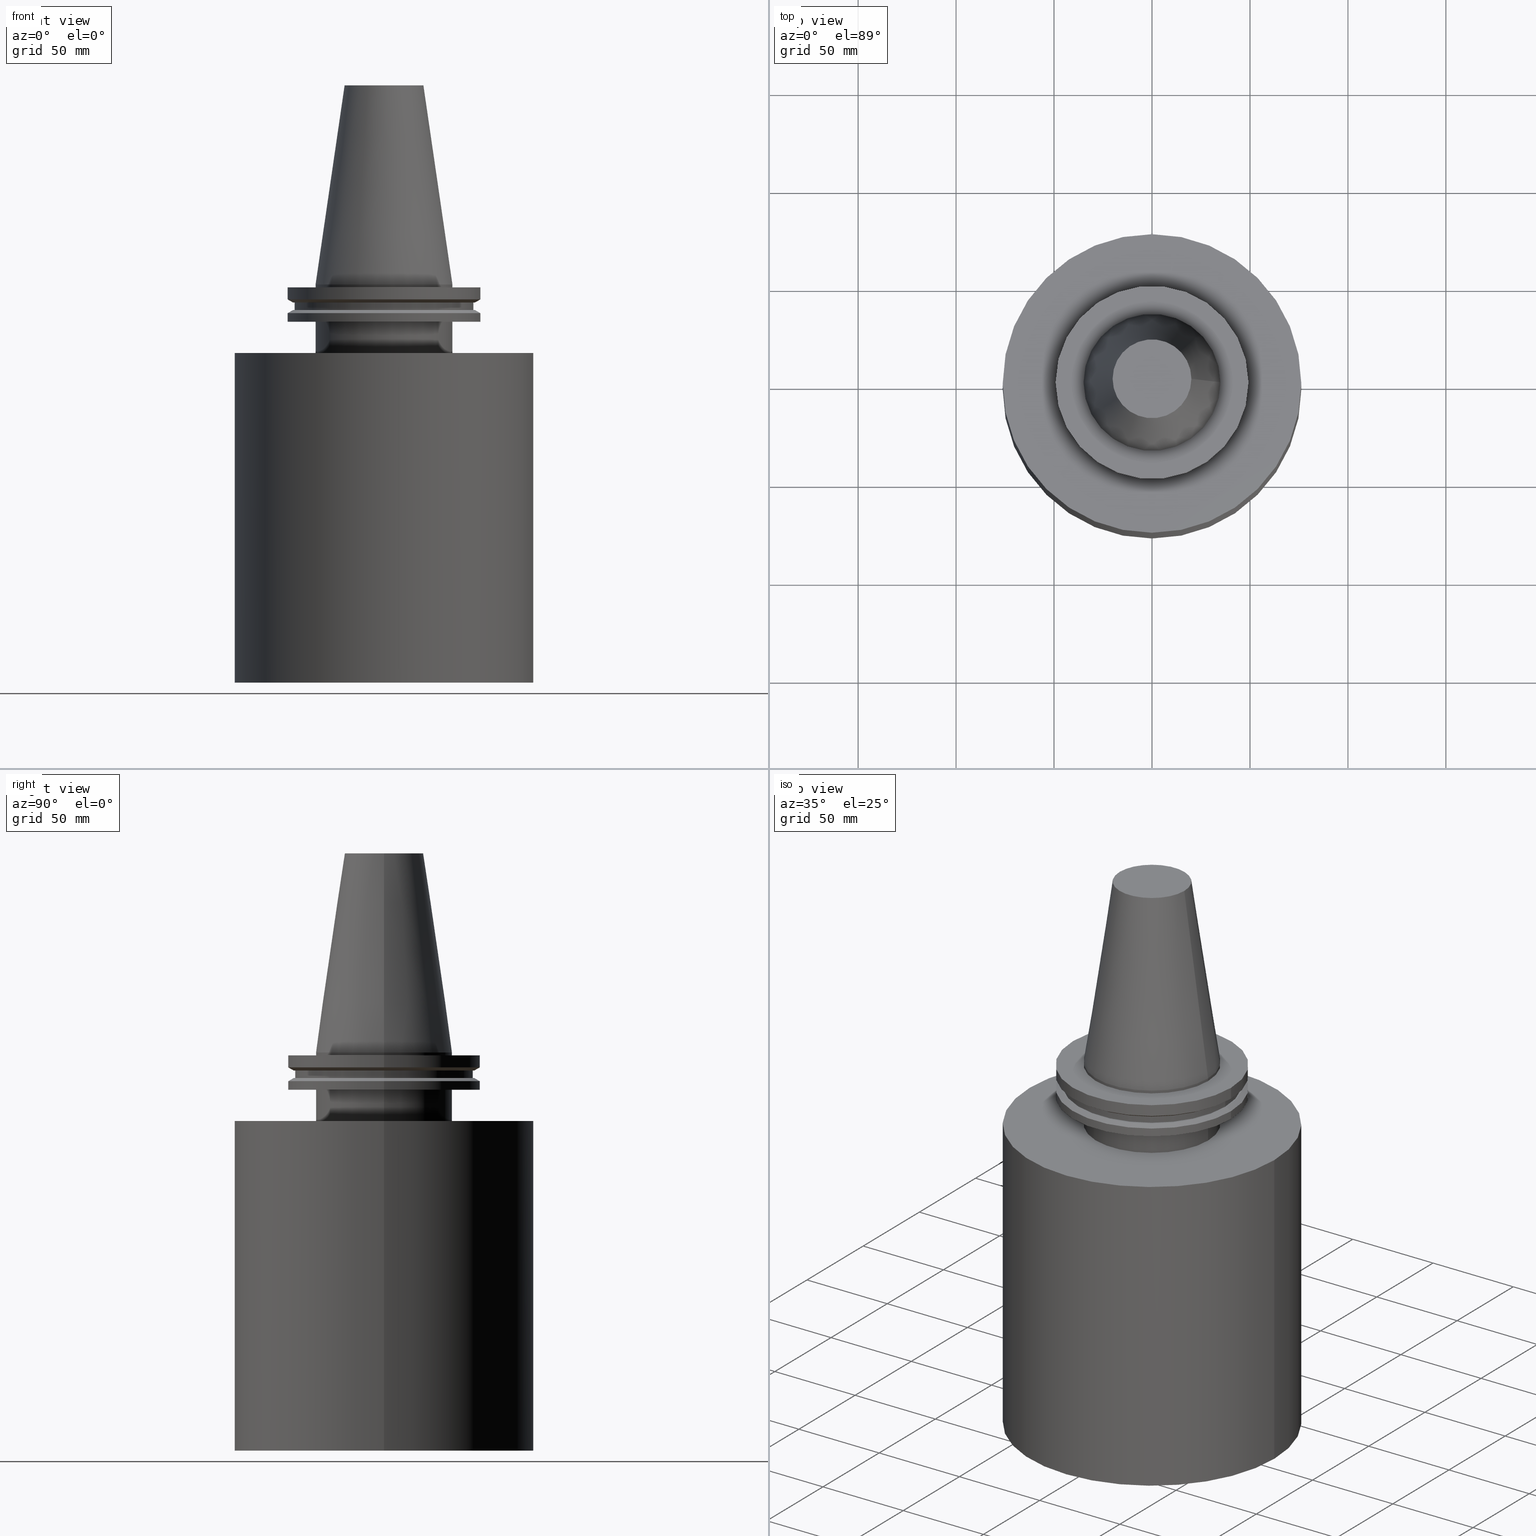
[diagram: canonical four-view strip — front | top / right | iso, engineering-drawing reading convention]
A machine part, canonical four-view strip (front | top / right | iso — engineering-drawing reading convention). The complete STEP part file that produces these views, byte-faithful:
ISO-10303-21;
HEADER;
FILE_DESCRIPTION (( 'STEP AP203' ),
    '1' );
FILE_NAME ('BVC50_BB6_000_8.stp',
    '2022-03-09T17:30:11',
    ( '' ),
    ( '' ),
    'SwSTEP 2.0',
    'SolidWorks 2021',
    '' );
FILE_SCHEMA (( 'CONFIG_CONTROL_DESIGN' ));
ENDSEC;

DATA;
#1 = VERTEX_POINT ( 'NONE', #205 ) ;
#2 = CIRCLE ( 'NONE', #90, 45.64500000000000313 ) ;
#3 = CARTESIAN_POINT ( 'NONE',  ( 76.20000000000000284, 0.000000000000000000, -35.00000000000000000 ) ) ;
#4 = AXIS2_PLACEMENT_3D ( 'NONE', #364, #6, #366 ) ;
#5 = PERSON ( 'UNSPECIFIED', 'UNSPECIFIED', 'UNSPECIFIED', ('UNSPECIFIED'), ('UNSPECIFIED'), ('UNSPECIFIED') ) ;
#6 = DIRECTION ( 'NONE',  ( -0.000000000000000000, -0.000000000000000000, 1.000000000000000000 ) ) ;
#7 = ORIENTED_EDGE ( 'NONE', *, *, #33, .T. ) ;
#8 = EDGE_LOOP ( 'NONE', ( #341 ) ) ;
#9 = DIRECTION ( 'NONE',  ( -0.000000000000000000, -0.000000000000000000, 1.000000000000000000 ) ) ;
#10 = CONICAL_SURFACE ( 'NONE', #225, 49.21499999999998920, 1.047197551196554333 ) ;
#11 = EDGE_LOOP ( 'NONE', ( #191 ) ) ;
#12 = CALENDAR_DATE ( 2022, 9, 3 ) ;
#13 = CARTESIAN_POINT ( 'NONE',  ( 46.43919780457007818, 0.000000000000000000, -13.05499999999999794 ) ) ;
#14 = EDGE_LOOP ( 'NONE', ( #395 ) ) ;
#15 = DATE_AND_TIME ( #12, #384 ) ;
#16 = ORIENTED_EDGE ( 'NONE', *, *, #197, .T. ) ;
#17 = CC_DESIGN_PERSON_AND_ORGANIZATION_ASSIGNMENT ( #112, #104, ( #158 ) ) ;
#18 = PERSON_AND_ORGANIZATION ( #5, #185 ) ;
#19 = DIRECTION ( 'NONE',  ( 1.000000000000000000, 0.000000000000000000, 0.000000000000000000 ) ) ;
#20 = APPROVAL_STATUS ( 'not_yet_approved' ) ;
#21 = CYLINDRICAL_SURFACE ( 'NONE', #266, 49.21499999999999631 ) ;
#22 = CC_DESIGN_PERSON_AND_ORGANIZATION_ASSIGNMENT ( #190, #192, ( #158 ) ) ;
#23 = CARTESIAN_POINT ( 'NONE',  ( 0.000000000000000000, 20.10819343178871321, 101.5999999999999943 ) ) ;
#24 = CC_DESIGN_APPROVAL ( #183, ( #386 ) ) ;
#25 = DIRECTION ( 'NONE',  ( 1.000000000000000000, 0.000000000000000000, 0.000000000000000000 ) ) ;
#26 = DIRECTION ( 'NONE',  ( -0.000000000000000000, -0.000000000000000000, 1.000000000000000000 ) ) ;
#27 = DIRECTION ( 'NONE',  ( -0.000000000000000000, -0.000000000000000000, 1.000000000000000000 ) ) ;
#28 = AXIS2_PLACEMENT_3D ( 'NONE', #256, #107, #259 ) ;
#29 = VERTEX_POINT ( 'NONE', #118 ) ;
#30 = CARTESIAN_POINT ( 'NONE',  ( 0.000000000000000000, 49.21499999999998920, -19.04999999999999716 ) ) ;
#31 = ORIENTED_EDGE ( 'NONE', *, *, #197, .F. ) ;
#32 = DIRECTION ( 'NONE',  ( 0.000000000000000000, -0.000000000000000000, 1.000000000000000000 ) ) ;
#33 = EDGE_CURVE ( 'NONE', #232, #232, #382, .T. ) ;
#34 = CONICAL_SURFACE ( 'NONE', #339, 46.43919780457007818, 1.047197551196575205 ) ;
#35 = DIRECTION ( 'NONE',  ( 1.000000000000000000, 0.000000000000000000, 0.000000000000000000 ) ) ;
#36 = FACE_OUTER_BOUND ( 'NONE', #8, .T. ) ;
#37 = VERTEX_POINT ( 'NONE', #160 ) ;
#38 = CARTESIAN_POINT ( 'NONE',  ( 0.000000000000000000, 0.000000000000000000, -9.204999999999991189 ) ) ;
#39 = CIRCLE ( 'NONE', #237, 76.20000000000000284 ) ;
#40 = ORIENTED_EDGE ( 'NONE', *, *, #381, .F. ) ;
#41 = CC_DESIGN_APPROVAL ( #147, ( #158 ) ) ;
#42 = EDGE_LOOP ( 'NONE', ( #102 ) ) ;
#43 = CARTESIAN_POINT ( 'NONE',  ( 0.000000000000000000, 0.000000000000000000, 0.000000000000000000 ) ) ;
#44 = ORIENTED_EDGE ( 'NONE', *, *, #33, .F. ) ;
#45 = CARTESIAN_POINT ( 'NONE',  ( 0.000000000000000000, 0.000000000000000000, 101.5999999999999801 ) ) ;
#46 = APPROVAL_PERSON_ORGANIZATION ( #18, #183, #106 ) ;
#47 = APPROVAL_DATE_TIME ( #137, #357 ) ;
#48 = PLANE ( 'NONE',  #188 ) ;
#49 = DATE_TIME_ROLE ( 'classification_date' ) ;
#50 = DIRECTION ( 'NONE',  ( -1.000000000000000000, 0.000000000000000000, -0.000000000000000000 ) ) ;
#51 = APPLICATION_CONTEXT ( 'configuration controlled 3d designs of mechanical parts and assemblies' ) ;
#52 = PRODUCT_RELATED_PRODUCT_CATEGORY ( 'detail', '', ( #53 ) ) ;
#53 = PRODUCT ( 'BVC50_BB6_000_8', 'BVC50_BB6_000_8', '', ( #252 ) ) ;
#54 = CARTESIAN_POINT ( 'NONE',  ( 0.000000000000000000, 0.000000000000000000, -14.65761014474876944 ) ) ;
#55 = CIRCLE ( 'NONE', #80, 49.21499999999998920 ) ;
#56 = FACE_BOUND ( 'NONE', #161, .T. ) ;
#57 = CARTESIAN_POINT ( 'NONE',  ( 34.92499999999999716, 0.000000000000000000, -35.00000000000000000 ) ) ;
#58 = CC_DESIGN_PERSON_AND_ORGANIZATION_ASSIGNMENT ( #219, #287, ( #386 ) ) ;
#59 = DIRECTION ( 'NONE',  ( 1.000000000000000000, 0.000000000000000000, 0.000000000000000000 ) ) ;
#60 = ADVANCED_FACE ( 'NONE', ( #187, #134 ), #347, .T. ) ;
#61 = CIRCLE ( 'NONE', #352, 34.92499999999999005 ) ;
#62 = CARTESIAN_POINT ( 'NONE',  ( 0.000000000000000000, 0.000000000000000000, -203.1999999999999886 ) ) ;
#63 = EDGE_CURVE ( 'NONE', #152, #152, #39, .T. ) ;
#64 = DIRECTION ( 'NONE',  ( -0.000000000000000000, -0.000000000000000000, 1.000000000000000000 ) ) ;
#65 = EDGE_LOOP ( 'NONE', ( #242 ) ) ;
#66 = VERTEX_POINT ( 'NONE', #276 ) ;
#67 = EDGE_LOOP ( 'NONE', ( #76 ) ) ;
#68 = AXIS2_PLACEMENT_3D ( 'NONE', #62, #270, #178 ) ;
#69 = CARTESIAN_POINT ( 'NONE',  ( 0.000000000000000000, 0.000000000000000000, 0.000000000000000000 ) ) ;
#70 = DIRECTION ( 'NONE',  ( 0.000000000000000000, 0.000000000000000000, -1.000000000000000000 ) ) ;
#71 = ADVANCED_FACE ( 'NONE', ( #309, #36 ), #344, .T. ) ;
#72 = AXIS2_PLACEMENT_3D ( 'NONE', #136, #113, #202 ) ;
#73 = DIRECTION ( 'NONE',  ( -0.000000000000000000, -0.000000000000000000, 1.000000000000000000 ) ) ;
#74 = LOCAL_TIME ( 11, 30, 11.00000000000000000, #133 ) ;
#75 = CALENDAR_DATE ( 2022, 9, 3 ) ;
#76 = ORIENTED_EDGE ( 'NONE', *, *, #342, .T. ) ;
#77 = APPROVAL_DATE_TIME ( #353, #147 ) ;
#78 = EDGE_LOOP ( 'NONE', ( #288 ) ) ;
#79 = DIRECTION ( 'NONE',  ( 0.000000000000000000, 0.000000000000000000, -1.000000000000000000 ) ) ;
#80 = AXIS2_PLACEMENT_3D ( 'NONE', #201, #262, #359 ) ;
#81 = CARTESIAN_POINT ( 'NONE',  ( 0.000000000000000000, 0.000000000000000000, 101.5999999999999943 ) ) ;
#82 = DIRECTION ( 'NONE',  ( 0.000000000000000000, -0.000000000000000000, 1.000000000000000000 ) ) ;
#83 = EDGE_CURVE ( 'NONE', #66, #66, #122, .T. ) ;
#84 = FACE_BOUND ( 'NONE', #279, .T. ) ;
#85 = CC_DESIGN_DATE_AND_TIME_ASSIGNMENT ( #108, #346, ( #386 ) ) ;
#86 = CARTESIAN_POINT ( 'NONE',  ( 0.000000000000000000, 0.000000000000000000, 101.5999999999999943 ) ) ;
#87 = DIRECTION ( 'NONE',  ( 1.000000000000000000, 0.000000000000000000, 0.000000000000000000 ) ) ;
#88 = DIRECTION ( 'NONE',  ( 0.000000000000000000, 0.000000000000000000, -1.000000000000000000 ) ) ;
#89 = ORIENTED_EDGE ( 'NONE', *, *, #141, .F. ) ;
#90 = AXIS2_PLACEMENT_3D ( 'NONE', #380, #228, #169 ) ;
#91 = CYLINDRICAL_SURFACE ( 'NONE', #301, 34.92499999999999005 ) ;
#92 = DIRECTION ( 'NONE',  ( 1.000000000000000000, 0.000000000000000000, 0.000000000000000000 ) ) ;
#93 = VERTEX_POINT ( 'NONE', #214 ) ;
#94 = ADVANCED_FACE ( 'NONE', ( #280, #248 ), #371, .T. ) ;
#95 = AXIS2_PLACEMENT_3D ( 'NONE', #299, #88, #236 ) ;
#96 = DIRECTION ( 'NONE',  ( -0.000000000000000000, -0.000000000000000000, 1.000000000000000000 ) ) ;
#97 = ORIENTED_EDGE ( 'NONE', *, *, #120, .F. ) ;
#98 = EDGE_CURVE ( 'NONE', #329, #329, #258, .T. ) ;
#99 = EDGE_LOOP ( 'NONE', ( #249 ) ) ;
#100 = CC_DESIGN_DATE_AND_TIME_ASSIGNMENT ( #15, #49, ( #166 ) ) ;
#101 = DATE_AND_TIME ( #75, #230 ) ;
#102 = ORIENTED_EDGE ( 'NONE', *, *, #129, .F. ) ;
#103 = AXIS2_PLACEMENT_3D ( 'NONE', #335, #64, #87 ) ;
#104 = PERSON_AND_ORGANIZATION_ROLE ( 'creator' ) ;
#105 = EDGE_LOOP ( 'NONE', ( #130 ) ) ;
#106 = APPROVAL_ROLE ( '' ) ;
#107 = DIRECTION ( 'NONE',  ( -0.000000000000000000, -0.000000000000000000, 1.000000000000000000 ) ) ;
#108 = DATE_AND_TIME ( #139, #313 ) ;
#109 = FACE_OUTER_BOUND ( 'NONE', #11, .T. ) ;
#110 = AXIS2_PLACEMENT_3D ( 'NONE', #388, #351, #50 ) ;
#111 = CIRCLE ( 'NONE', #4, 46.43919780457007818 ) ;
#112 = PERSON_AND_ORGANIZATION ( #5, #185 ) ;
#113 = DIRECTION ( 'NONE',  ( -0.000000000000000000, -0.000000000000000000, 1.000000000000000000 ) ) ;
#114 = DIRECTION ( 'NONE',  ( 1.000000000000000000, 0.000000000000000000, 0.000000000000000000 ) ) ;
#115 = DIRECTION ( 'NONE',  ( -0.000000000000000000, -0.000000000000000000, 1.000000000000000000 ) ) ;
#116 = AXIS2_PLACEMENT_3D ( 'NONE', #391, #148, #213 ) ;
#117 = DIRECTION ( 'NONE',  ( 1.000000000000000000, 0.000000000000000000, 0.000000000000000000 ) ) ;
#118 = CARTESIAN_POINT ( 'NONE',  ( 20.10819343178871321, 0.000000000000000000, 101.5999999999999801 ) ) ;
#119 = FACE_OUTER_BOUND ( 'NONE', #310, .T. ) ;
#120 = EDGE_CURVE ( 'NONE', #174, #174, #55, .T. ) ;
#121 = ORIENTED_EDGE ( 'NONE', *, *, #342, .F. ) ;
#122 = CIRCLE ( 'NONE', #320, 46.43919780457007818 ) ;
#123 = FACE_OUTER_BOUND ( 'NONE', #220, .T. ) ;
#124 = DIRECTION ( 'NONE',  ( 1.000000000000000000, 0.000000000000000000, 0.000000000000000000 ) ) ;
#125 = EDGE_CURVE ( 'NONE', #360, #360, #61, .T. ) ;
#126 = EDGE_LOOP ( 'NONE', ( #343 ) ) ;
#127 = ADVANCED_FACE ( 'NONE', ( #84, #229 ), #10, .T. ) ;
#128 = EDGE_LOOP ( 'NONE', ( #277 ) ) ;
#129 = EDGE_CURVE ( 'NONE', #29, #29, #312, .T. ) ;
#130 = ORIENTED_EDGE ( 'NONE', *, *, #83, .F. ) ;
#131 = MANIFOLD_SOLID_BREP ( 'BB', #331 ) ;
#132 = ORIENTED_EDGE ( 'NONE', *, *, #193, .F. ) ;
#133 = COORDINATED_UNIVERSAL_TIME_OFFSET ( 6, 0, .BEHIND. ) ;
#134 = FACE_OUTER_BOUND ( 'NONE', #286, .T. ) ;
#135 = COORDINATED_UNIVERSAL_TIME_OFFSET ( 6, 0, .BEHIND. ) ;
#136 = CARTESIAN_POINT ( 'NONE',  ( 0.000000000000000000, 0.000000000000000000, -19.04999999999999716 ) ) ;
#137 = DATE_AND_TIME ( #375, #74 ) ;
#138 = DIRECTION ( 'NONE',  ( -0.000000000000000000, -0.000000000000000000, 1.000000000000000000 ) ) ;
#139 = CALENDAR_DATE ( 2022, 9, 3 ) ;
#140 = FACE_OUTER_BOUND ( 'NONE', #368, .T. ) ;
#141 = EDGE_CURVE ( 'NONE', #234, #234, #2, .T. ) ;
#142 = DIRECTION ( 'NONE',  ( 1.000000000000000000, 0.000000000000000000, 0.000000000000000000 ) ) ;
#143 = DIRECTION ( 'NONE',  ( -0.000000000000000000, -0.000000000000000000, 1.000000000000000000 ) ) ;
#144 = PLANE ( 'NONE',  #275 ) ;
#145 = ADVANCED_FACE ( 'NONE', ( #385, #323 ), #263, .F. ) ;
#146 = PLANE ( 'NONE',  #116 ) ;
#147 = APPROVAL ( #224, 'UNSPECIFIED' ) ;
#148 = DIRECTION ( 'NONE',  ( 0.000000000000000000, -0.000000000000000000, 1.000000000000000000 ) ) ;
#149 = CARTESIAN_POINT ( 'NONE',  ( 0.000000000000000000, 0.000000000000000000, -7.602389855251287187 ) ) ;
#150 = AXIS2_PLACEMENT_3D ( 'NONE', #293, #82, #326 ) ;
#151 = APPROVAL_PERSON_ORGANIZATION ( #292, #147, #162 ) ;
#152 = VERTEX_POINT ( 'NONE', #3 ) ;
#153 = DESIGN_CONTEXT ( 'detailed design', #51, 'design' ) ;
#154 =( NAMED_UNIT ( * ) PLANE_ANGLE_UNIT ( ) SI_UNIT ( $, .RADIAN. ) );
#155 = CARTESIAN_POINT ( 'NONE',  ( 45.64500000000000313, 0.000000000000000000, -13.05499999999999794 ) ) ;
#156 = ORIENTED_EDGE ( 'NONE', *, *, #63, .F. ) ;
#157 = DIRECTION ( 'NONE',  ( 1.000000000000000000, 0.000000000000000000, 0.000000000000000000 ) ) ;
#158 = PRODUCT_DEFINITION_FORMATION_WITH_SPECIFIED_SOURCE ( 'ANY', '', #53, .NOT_KNOWN. ) ;
#159 = DIRECTION ( 'NONE',  ( -0.000000000000000000, -0.000000000000000000, 1.000000000000000000 ) ) ;
#160 = CARTESIAN_POINT ( 'NONE',  ( 76.20000000000000284, 0.000000000000000000, -203.1999999999999886 ) ) ;
#161 = EDGE_LOOP ( 'NONE', ( #31 ) ) ;
#162 = APPROVAL_ROLE ( '' ) ;
#163 = DIRECTION ( 'NONE',  ( 1.000000000000000000, 0.000000000000000000, 0.000000000000000000 ) ) ;
#164 = SECURITY_CLASSIFICATION_LEVEL ( 'unclassified' ) ;
#165 = DIRECTION ( 'NONE',  ( 0.000000000000000000, 0.000000000000000000, -1.000000000000000000 ) ) ;
#166 = SECURITY_CLASSIFICATION ( '', '', #164 ) ;
#167 = APPLICATION_PROTOCOL_DEFINITION ( 'international standard', 'config_control_design', 1994, #51 ) ;
#168 = PLANE ( 'NONE',  #150 ) ;
#169 = DIRECTION ( 'NONE',  ( 1.000000000000000000, 0.000000000000000000, 0.000000000000000000 ) ) ;
#170 = APPLICATION_CONTEXT ( 'configuration controlled 3d designs of mechanical parts and assemblies' ) ;
#171 = CC_DESIGN_PERSON_AND_ORGANIZATION_ASSIGNMENT ( #198, #324, ( #166 ) ) ;
#172 = FACE_OUTER_BOUND ( 'NONE', #303, .T. ) ;
#173 = CARTESIAN_POINT ( 'NONE',  ( 0.000000000000000000, 0.000000000000000000, -9.204999999999991189 ) ) ;
#174 = VERTEX_POINT ( 'NONE', #206 ) ;
#175 = FACE_OUTER_BOUND ( 'NONE', #105, .T. ) ;
#176 = ADVANCED_FACE ( 'NONE', ( #56, #109 ), #354, .F. ) ;
#177 = CIRCLE ( 'NONE', #68, 76.20000000000000284 ) ;
#178 = DIRECTION ( 'NONE',  ( 1.000000000000000000, 0.000000000000000000, 0.000000000000000000 ) ) ;
#179 = ADVANCED_FACE ( 'NONE', ( #295 ), #48, .F. ) ;
#180 = FACE_OUTER_BOUND ( 'NONE', #393, .T. ) ;
#181 = ORIENTED_EDGE ( 'NONE', *, *, #98, .F. ) ;
#182 = FACE_OUTER_BOUND ( 'NONE', #126, .T. ) ;
#183 = APPROVAL ( #379, 'UNSPECIFIED' ) ;
#184 = EDGE_LOOP ( 'NONE', ( #373 ) ) ;
#185 = ORGANIZATION ( 'UNSPECIFIED', 'UNSPECIFIED', '' ) ;
#186 = DIRECTION ( 'NONE',  ( -1.000000000000000000, 0.000000000000000000, 0.000000000000000000 ) ) ;
#187 = FACE_OUTER_BOUND ( 'NONE', #189, .T. ) ;
#188 = AXIS2_PLACEMENT_3D ( 'NONE', #23, #79, #227 ) ;
#189 = EDGE_LOOP ( 'NONE', ( #89 ) ) ;
#190 = PERSON_AND_ORGANIZATION ( #5, #185 ) ;
#191 = ORIENTED_EDGE ( 'NONE', *, *, #294, .T. ) ;
#192 = PERSON_AND_ORGANIZATION_ROLE ( 'design_supplier' ) ;
#193 = EDGE_CURVE ( 'NONE', #332, #332, #238, .T. ) ;
#194 = DIRECTION ( 'NONE',  ( 1.000000000000000000, 0.000000000000000000, 0.000000000000000000 ) ) ;
#195 = AXIS2_PLACEMENT_3D ( 'NONE', #311, #159, #25 ) ;
#196 = CARTESIAN_POINT ( 'NONE',  ( 0.000000000000000000, 0.000000000000000000, 0.000000000000000000 ) ) ;
#197 = EDGE_CURVE ( 'NONE', #246, #246, #296, .T. ) ;
#198 = PERSON_AND_ORGANIZATION ( #5, #185 ) ;
#199 = FACE_OUTER_BOUND ( 'NONE', #336, .T. ) ;
#200 = ADVANCED_FACE ( 'NONE', ( #140, #328 ), #34, .T. ) ;
#201 = CARTESIAN_POINT ( 'NONE',  ( 0.000000000000000000, 0.000000000000000000, -14.65761014474876944 ) ) ;
#202 = DIRECTION ( 'NONE',  ( 1.000000000000000000, 0.000000000000000000, 0.000000000000000000 ) ) ;
#203 = CC_DESIGN_APPROVAL ( #357, ( #166 ) ) ;
#204 = CARTESIAN_POINT ( 'NONE',  ( 49.21499999999999631, 0.000000000000000000, -1.499999999999987566 ) ) ;
#205 = CARTESIAN_POINT ( 'NONE',  ( 49.21500000000000341, 0.000000000000000000, -7.602389855251287187 ) ) ;
#206 = CARTESIAN_POINT ( 'NONE',  ( 49.21499999999998920, 0.000000000000000000, -14.65761014474876944 ) ) ;
#207 = CARTESIAN_POINT ( 'NONE',  ( 45.64500000000000313, 0.000000000000000000, -9.204999999999991189 ) ) ;
#208 = EDGE_LOOP ( 'NONE', ( #272 ) ) ;
#209 = AXIS2_PLACEMENT_3D ( 'NONE', #215, #218, #163 ) ;
#210 = LOCAL_TIME ( 11, 30, 11.00000000000000000, #383 ) ;
#211 = ADVANCED_FACE ( 'NONE', ( #298 ), #168, .F. ) ;
#212 = PLANE ( 'NONE',  #95 ) ;
#213 = DIRECTION ( 'NONE',  ( 1.000000000000000000, 0.000000000000000000, 0.000000000000000000 ) ) ;
#214 = CARTESIAN_POINT ( 'NONE',  ( 34.92499999999999716, 0.000000000000000000, -19.04999999999999716 ) ) ;
#215 = CARTESIAN_POINT ( 'NONE',  ( 0.000000000000000000, 0.000000000000000000, -1.499999999999987566 ) ) ;
#216 = EDGE_LOOP ( 'NONE', ( #181 ) ) ;
#217 = ADVANCED_FACE ( 'NONE', ( #199, #172 ), #319, .T. ) ;
#218 = DIRECTION ( 'NONE',  ( -0.000000000000000000, -0.000000000000000000, 1.000000000000000000 ) ) ;
#219 = PERSON_AND_ORGANIZATION ( #5, #185 ) ;
#220 = EDGE_LOOP ( 'NONE', ( #244 ) ) ;
#221 = DIRECTION ( 'NONE',  ( 0.000000000000000000, 0.000000000000000000, 1.000000000000000000 ) ) ;
#222 = DIRECTION ( 'NONE',  ( 1.000000000000000000, 0.000000000000000000, 0.000000000000000000 ) ) ;
#223 = CARTESIAN_POINT ( 'NONE',  ( 0.000000000000000000, 49.21499999999999631, -1.499999999999992895 ) ) ;
#224 = APPROVAL_STATUS ( 'not_yet_approved' ) ;
#225 = AXIS2_PLACEMENT_3D ( 'NONE', #54, #165, #226 ) ;
#226 = DIRECTION ( 'NONE',  ( -1.000000000000000000, 0.000000000000000000, 0.000000000000000000 ) ) ;
#227 = DIRECTION ( 'NONE',  ( -1.000000000000000000, 0.000000000000000000, -0.000000000000000000 ) ) ;
#228 = DIRECTION ( 'NONE',  ( -0.000000000000000000, -0.000000000000000000, 1.000000000000000000 ) ) ;
#229 = FACE_OUTER_BOUND ( 'NONE', #307, .T. ) ;
#230 = LOCAL_TIME ( 11, 30, 11.00000000000000000, #135 ) ;
#231 = ADVANCED_FACE ( 'NONE', ( #291, #378 ), #21, .T. ) ;
#232 = VERTEX_POINT ( 'NONE', #204 ) ;
#233 = UNCERTAINTY_MEASURE_WITH_UNIT (LENGTH_MEASURE( 1.000000000000000082E-05 ), #365, 'distance_accuracy_value', 'NONE');
#234 = VERTEX_POINT ( 'NONE', #207 ) ;
#235 = ORIENTED_EDGE ( 'NONE', *, *, #294, .F. ) ;
#236 = DIRECTION ( 'NONE',  ( -1.000000000000000000, 0.000000000000000000, -0.000000000000000000 ) ) ;
#237 = AXIS2_PLACEMENT_3D ( 'NONE', #340, #73, #222 ) ;
#238 = CIRCLE ( 'NONE', #72, 49.21499999999998920 ) ;
#239 = CC_DESIGN_PERSON_AND_ORGANIZATION_ASSIGNMENT ( #348, #377, ( #53 ) ) ;
#240 = DIRECTION ( 'NONE',  ( -0.000000000000000000, -0.000000000000000000, 1.000000000000000000 ) ) ;
#241 = DIRECTION ( 'NONE',  ( -0.000000000000000000, -0.000000000000000000, 1.000000000000000000 ) ) ;
#242 = ORIENTED_EDGE ( 'NONE', *, *, #141, .T. ) ;
#243 = APPLICATION_PROTOCOL_DEFINITION ( 'international standard', 'config_control_design', 1994, #170 ) ;
#244 = ORIENTED_EDGE ( 'NONE', *, *, #63, .T. ) ;
#245 = AXIS2_PLACEMENT_3D ( 'NONE', #297, #26, #142 ) ;
#246 = VERTEX_POINT ( 'NONE', #155 ) ;
#247 = EDGE_CURVE ( 'NONE', #37, #37, #177, .T. ) ;
#248 = FACE_OUTER_BOUND ( 'NONE', #184, .T. ) ;
#249 = ORIENTED_EDGE ( 'NONE', *, *, #247, .F. ) ;
#250 = ADVANCED_FACE ( 'NONE', ( #119, #302 ), #144, .F. ) ;
#251 = EDGE_LOOP ( 'NONE', ( #156 ) ) ;
#252 = MECHANICAL_CONTEXT ( 'NONE', #170, 'mechanical' ) ;
#253 = CARTESIAN_POINT ( 'NONE',  ( 0.000000000000000000, 0.000000000000000000, 101.5999999999999943 ) ) ;
#254 = COORDINATED_UNIVERSAL_TIME_OFFSET ( 6, 0, .BEHIND. ) ;
#255 = DIRECTION ( 'NONE',  ( -1.000000000000000000, 0.000000000000000000, -0.000000000000000000 ) ) ;
#256 = CARTESIAN_POINT ( 'NONE',  ( 0.000000000000000000, 0.000000000000000000, -35.00000000000000000 ) ) ;
#257 = APPROVAL_DATE_TIME ( #101, #183 ) ;
#258 = CIRCLE ( 'NONE', #28, 34.92499999999999716 ) ;
#259 = DIRECTION ( 'NONE',  ( 1.000000000000000000, 0.000000000000000000, 0.000000000000000000 ) ) ;
#260 = ADVANCED_BREP_SHAPE_REPRESENTATION ( 'BVC50_BB6_000_8', ( #131, #369 ), #345 ) ;
#261 = CARTESIAN_POINT ( 'NONE',  ( 34.92499999999999005, 0.000000000000000000, -1.499999999999987566 ) ) ;
#262 = DIRECTION ( 'NONE',  ( -0.000000000000000000, -0.000000000000000000, 1.000000000000000000 ) ) ;
#263 = PLANE ( 'NONE',  #281 ) ;
#264 = ADVANCED_FACE ( 'NONE', ( #175, #300 ), #146, .F. ) ;
#265 = DIRECTION ( 'NONE',  ( -0.000000000000000000, -0.000000000000000000, 1.000000000000000000 ) ) ;
#266 = AXIS2_PLACEMENT_3D ( 'NONE', #81, #27, #59 ) ;
#267 = ADVANCED_FACE ( 'NONE', ( #361, #182 ), #91, .T. ) ;
#268 = FACE_OUTER_BOUND ( 'NONE', #208, .T. ) ;
#269 = ORIENTED_EDGE ( 'NONE', *, *, #98, .T. ) ;
#270 = DIRECTION ( 'NONE',  ( -0.000000000000000000, -0.000000000000000000, 1.000000000000000000 ) ) ;
#271 = ADVANCED_FACE ( 'NONE', ( #394, #123 ), #212, .F. ) ;
#272 = ORIENTED_EDGE ( 'NONE', *, *, #193, .T. ) ;
#273 = CARTESIAN_POINT ( 'NONE',  ( 0.000000000000000000, 0.000000000000000000, -19.04999999999999716 ) ) ;
#274 = AXIS2_PLACEMENT_3D ( 'NONE', #387, #143, #114 ) ;
#275 = AXIS2_PLACEMENT_3D ( 'NONE', #30, #32, #124 ) ;
#276 = CARTESIAN_POINT ( 'NONE',  ( 46.43919780457007818, 0.000000000000000000, -9.204999999999991189 ) ) ;
#277 = ORIENTED_EDGE ( 'NONE', *, *, #129, .T. ) ;
#278 = VERTEX_POINT ( 'NONE', #261 ) ;
#279 = EDGE_LOOP ( 'NONE', ( #235 ) ) ;
#280 = FACE_OUTER_BOUND ( 'NONE', #251, .T. ) ;
#281 = AXIS2_PLACEMENT_3D ( 'NONE', #223, #325, #255 ) ;
#282 = CIRCLE ( 'NONE', #103, 34.92499999999999005 ) ;
#283 = EDGE_LOOP ( 'NONE', ( #367 ) ) ;
#284 = COORDINATED_UNIVERSAL_TIME_OFFSET ( 6, 0, .BEHIND. ) ;
#285 = VERTEX_POINT ( 'NONE', #13 ) ;
#286 = EDGE_LOOP ( 'NONE', ( #16 ) ) ;
#287 = PERSON_AND_ORGANIZATION_ROLE ( 'creator' ) ;
#288 = ORIENTED_EDGE ( 'NONE', *, *, #83, .T. ) ;
#289 = DIRECTION ( 'NONE',  ( 1.000000000000000000, 0.000000000000000000, 0.000000000000000000 ) ) ;
#290 = AXIS2_PLACEMENT_3D ( 'NONE', #273, #240, #92 ) ;
#291 = FACE_OUTER_BOUND ( 'NONE', #362, .T. ) ;
#292 = PERSON_AND_ORGANIZATION ( #5, #185 ) ;
#293 = CARTESIAN_POINT ( 'NONE',  ( 0.000000000000000000, 76.20000000000000284, -203.1999999999999886 ) ) ;
#294 = EDGE_CURVE ( 'NONE', #285, #285, #111, .T. ) ;
#295 = FACE_OUTER_BOUND ( 'NONE', #128, .T. ) ;
#296 = CIRCLE ( 'NONE', #274, 45.64500000000000313 ) ;
#297 = CARTESIAN_POINT ( 'NONE',  ( 0.000000000000000000, 0.000000000000000000, 101.5999999999999943 ) ) ;
#298 = FACE_OUTER_BOUND ( 'NONE', #99, .T. ) ;
#299 = CARTESIAN_POINT ( 'NONE',  ( 0.000000000000000000, 0.000000000000000000, -35.00000000000000000 ) ) ;
#300 = FACE_BOUND ( 'NONE', #65, .T. ) ;
#301 = AXIS2_PLACEMENT_3D ( 'NONE', #337, #265, #35 ) ;
#302 = FACE_BOUND ( 'NONE', #14, .T. ) ;
#303 = EDGE_LOOP ( 'NONE', ( #269 ) ) ;
#304 = DIRECTION ( 'NONE',  ( 1.000000000000000000, 0.000000000000000000, 0.000000000000000000 ) ) ;
#305 =( NAMED_UNIT ( * ) SI_UNIT ( $, .STERADIAN. ) SOLID_ANGLE_UNIT ( ) );
#306 = CYLINDRICAL_SURFACE ( 'NONE', #308, 49.21499999999998920 ) ;
#307 = EDGE_LOOP ( 'NONE', ( #372 ) ) ;
#308 = AXIS2_PLACEMENT_3D ( 'NONE', #86, #392, #117 ) ;
#309 = FACE_BOUND ( 'NONE', #42, .T. ) ;
#310 = EDGE_LOOP ( 'NONE', ( #132 ) ) ;
#311 = CARTESIAN_POINT ( 'NONE',  ( 0.000000000000000000, 0.000000000000000000, 0.000000000000000000 ) ) ;
#312 = CIRCLE ( 'NONE', #333, 20.10819343178871321 ) ;
#313 = LOCAL_TIME ( 11, 30, 11.00000000000000000, #254 ) ;
#314 = EDGE_CURVE ( 'NONE', #278, #278, #282, .T. ) ;
#315 = EDGE_LOOP ( 'NONE', ( #7 ) ) ;
#316 = APPROVAL_ROLE ( '' ) ;
#317 = ORIENTED_EDGE ( 'NONE', *, *, #125, .F. ) ;
#318 = SHAPE_DEFINITION_REPRESENTATION ( #355, #260 ) ;
#319 = CYLINDRICAL_SURFACE ( 'NONE', #245, 34.92499999999999716 ) ;
#320 = AXIS2_PLACEMENT_3D ( 'NONE', #38, #9, #157 ) ;
#321 = PERSON_AND_ORGANIZATION ( #5, #185 ) ;
#322 = CIRCLE ( 'NONE', #334, 49.21500000000000341 ) ;
#323 = FACE_OUTER_BOUND ( 'NONE', #315, .T. ) ;
#324 = PERSON_AND_ORGANIZATION_ROLE ( 'classification_officer' ) ;
#325 = DIRECTION ( 'NONE',  ( 0.000000000000000000, 0.000000000000000000, -1.000000000000000000 ) ) ;
#326 = DIRECTION ( 'NONE',  ( 1.000000000000000000, 0.000000000000000000, 0.000000000000000000 ) ) ;
#327 = CIRCLE ( 'NONE', #290, 34.92499999999999716 ) ;
#328 = FACE_BOUND ( 'NONE', #78, .T. ) ;
#329 = VERTEX_POINT ( 'NONE', #57 ) ;
#330 = CARTESIAN_POINT ( 'NONE',  ( 34.92499999999999005, 0.000000000000000000, 0.000000000000000000 ) ) ;
#331 = CLOSED_SHELL ( 'NONE', ( #71, #179, #217, #250, #338, #127, #176, #60, #264, #200, #231, #145, #267, #271, #94, #211 ) ) ;
#332 = VERTEX_POINT ( 'NONE', #370 ) ;
#333 = AXIS2_PLACEMENT_3D ( 'NONE', #45, #358, #194 ) ;
#334 = AXIS2_PLACEMENT_3D ( 'NONE', #149, #241, #304 ) ;
#335 = CARTESIAN_POINT ( 'NONE',  ( 0.000000000000000000, 0.000000000000000000, -1.499999999999987566 ) ) ;
#336 = EDGE_LOOP ( 'NONE', ( #40 ) ) ;
#337 = CARTESIAN_POINT ( 'NONE',  ( 0.000000000000000000, 0.000000000000000000, 101.5999999999999943 ) ) ;
#338 = ADVANCED_FACE ( 'NONE', ( #180, #268 ), #306, .T. ) ;
#339 = AXIS2_PLACEMENT_3D ( 'NONE', #173, #115, #356 ) ;
#340 = CARTESIAN_POINT ( 'NONE',  ( 0.000000000000000000, 0.000000000000000000, -35.00000000000000000 ) ) ;
#341 = ORIENTED_EDGE ( 'NONE', *, *, #125, .T. ) ;
#342 = EDGE_CURVE ( 'NONE', #1, #1, #322, .T. ) ;
#343 = ORIENTED_EDGE ( 'NONE', *, *, #314, .T. ) ;
#344 = CONICAL_SURFACE ( 'NONE', #389, 34.92499999999999005, 0.1448138465474119452 ) ;
#345 =( GEOMETRIC_REPRESENTATION_CONTEXT ( 3 ) GLOBAL_UNCERTAINTY_ASSIGNED_CONTEXT ( ( #233 ) ) GLOBAL_UNIT_ASSIGNED_CONTEXT ( ( #365, #154, #305 ) ) REPRESENTATION_CONTEXT ( 'NONE', 'WORKASPACE' ) );
#346 = DATE_TIME_ROLE ( 'creation_date' ) ;
#347 = CYLINDRICAL_SURFACE ( 'NONE', #363, 45.64500000000000313 ) ;
#348 = PERSON_AND_ORGANIZATION ( #5, #185 ) ;
#349 = EDGE_LOOP ( 'NONE', ( #317 ) ) ;
#350 = CALENDAR_DATE ( 2022, 9, 3 ) ;
#351 = DIRECTION ( 'NONE',  ( 0.000000000000000000, 0.000000000000000000, -1.000000000000000000 ) ) ;
#352 = AXIS2_PLACEMENT_3D ( 'NONE', #196, #138, #19 ) ;
#353 = DATE_AND_TIME ( #350, #210 ) ;
#354 = PLANE ( 'NONE',  #110 ) ;
#355 = PRODUCT_DEFINITION_SHAPE ( 'NONE', 'NONE',  #386 ) ;
#356 = DIRECTION ( 'NONE',  ( 1.000000000000000000, 0.000000000000000000, 0.000000000000000000 ) ) ;
#357 = APPROVAL ( #20, 'UNSPECIFIED' ) ;
#358 = DIRECTION ( 'NONE',  ( -0.000000000000000000, -0.000000000000000000, 1.000000000000000000 ) ) ;
#359 = DIRECTION ( 'NONE',  ( 1.000000000000000000, 0.000000000000000000, 0.000000000000000000 ) ) ;
#360 = VERTEX_POINT ( 'NONE', #330 ) ;
#361 = FACE_OUTER_BOUND ( 'NONE', #349, .T. ) ;
#362 = EDGE_LOOP ( 'NONE', ( #44 ) ) ;
#363 = AXIS2_PLACEMENT_3D ( 'NONE', #253, #96, #376 ) ;
#364 = CARTESIAN_POINT ( 'NONE',  ( 0.000000000000000000, 0.000000000000000000, -13.05499999999999794 ) ) ;
#365 =( LENGTH_UNIT ( ) NAMED_UNIT ( * ) SI_UNIT ( .MILLI., .METRE. ) );
#366 = DIRECTION ( 'NONE',  ( 1.000000000000000000, 0.000000000000000000, 0.000000000000000000 ) ) ;
#367 = ORIENTED_EDGE ( 'NONE', *, *, #314, .F. ) ;
#368 = EDGE_LOOP ( 'NONE', ( #121 ) ) ;
#369 = AXIS2_PLACEMENT_3D ( 'NONE', #43, #221, #289 ) ;
#370 = CARTESIAN_POINT ( 'NONE',  ( 49.21499999999998920, 0.000000000000000000, -19.04999999999999716 ) ) ;
#371 = CYLINDRICAL_SURFACE ( 'NONE', #195, 76.20000000000000284 ) ;
#372 = ORIENTED_EDGE ( 'NONE', *, *, #120, .T. ) ;
#373 = ORIENTED_EDGE ( 'NONE', *, *, #247, .T. ) ;
#374 = APPROVAL_PERSON_ORGANIZATION ( #321, #357, #316 ) ;
#375 = CALENDAR_DATE ( 2022, 9, 3 ) ;
#376 = DIRECTION ( 'NONE',  ( 1.000000000000000000, 0.000000000000000000, 0.000000000000000000 ) ) ;
#377 = PERSON_AND_ORGANIZATION_ROLE ( 'design_owner' ) ;
#378 = FACE_OUTER_BOUND ( 'NONE', #67, .T. ) ;
#379 = APPROVAL_STATUS ( 'not_yet_approved' ) ;
#380 = CARTESIAN_POINT ( 'NONE',  ( 0.000000000000000000, 0.000000000000000000, -9.204999999999991189 ) ) ;
#381 = EDGE_CURVE ( 'NONE', #93, #93, #327, .T. ) ;
#382 = CIRCLE ( 'NONE', #209, 49.21499999999999631 ) ;
#383 = COORDINATED_UNIVERSAL_TIME_OFFSET ( 6, 0, .BEHIND. ) ;
#384 = LOCAL_TIME ( 11, 30, 11.00000000000000000, #284 ) ;
#385 = FACE_BOUND ( 'NONE', #283, .T. ) ;
#386 = PRODUCT_DEFINITION ( 'UNKNOWN', '', #158, #153 ) ;
#387 = CARTESIAN_POINT ( 'NONE',  ( 0.000000000000000000, 0.000000000000000000, -13.05499999999999794 ) ) ;
#388 = CARTESIAN_POINT ( 'NONE',  ( 0.000000000000000000, 45.64500000000000313, -13.05499999999999794 ) ) ;
#389 = AXIS2_PLACEMENT_3D ( 'NONE', #69, #70, #186 ) ;
#390 = CC_DESIGN_SECURITY_CLASSIFICATION ( #166, ( #158 ) ) ;
#391 = CARTESIAN_POINT ( 'NONE',  ( 0.000000000000000000, 46.43919780457007818, -9.204999999999998295 ) ) ;
#392 = DIRECTION ( 'NONE',  ( -0.000000000000000000, -0.000000000000000000, 1.000000000000000000 ) ) ;
#393 = EDGE_LOOP ( 'NONE', ( #97 ) ) ;
#394 = FACE_BOUND ( 'NONE', #216, .T. ) ;
#395 = ORIENTED_EDGE ( 'NONE', *, *, #381, .T. ) ;
ENDSEC;
END-ISO-10303-21;
